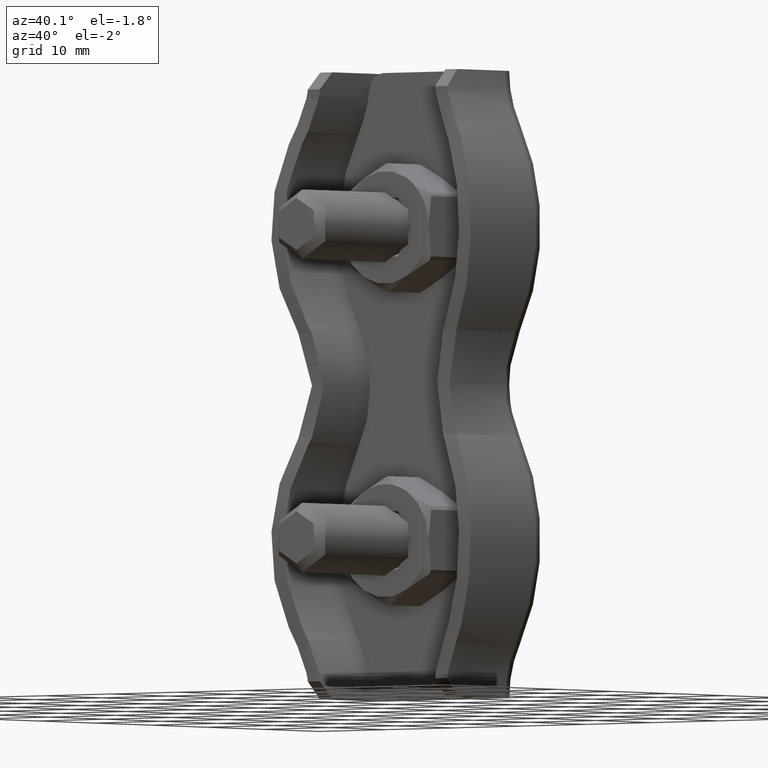
[diagram: clean part render]
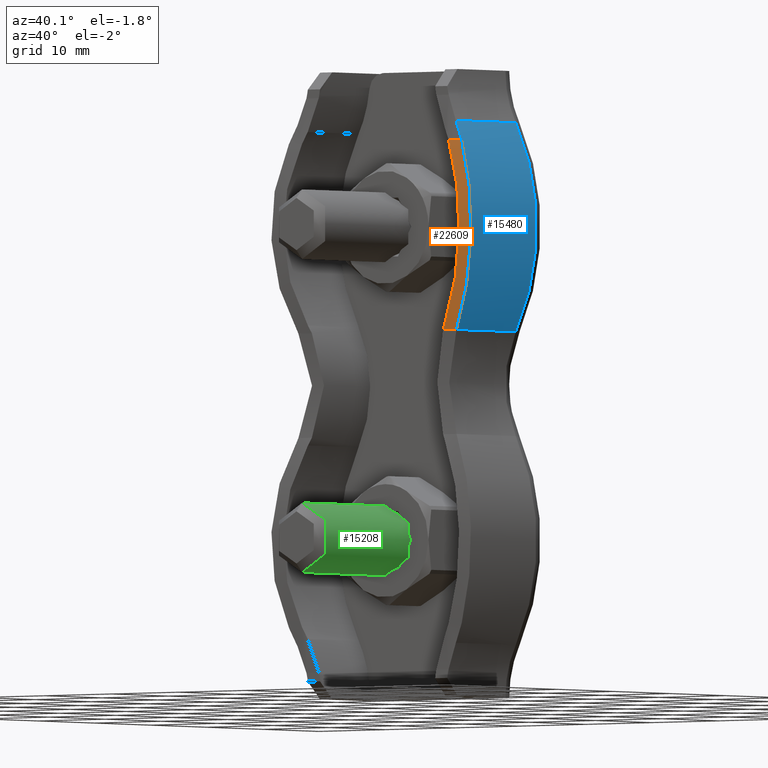
[diagram: same view with three faces highlighted in distinct colors, each labeled with its STEP entity id]
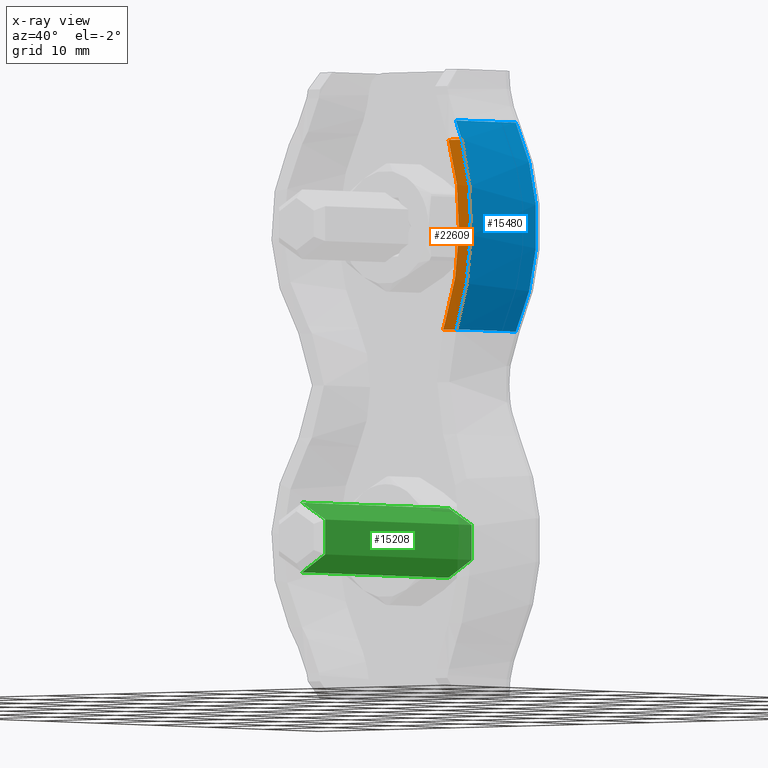
[diagram: x-ray of the same camera — body ghosted, the three highlighted faces saturated]
A machine part, auxiliary view with three faces highlighted in distinct colors.
The next image is the same camera in x-ray (body ghosted, the three faces saturated) — at least one of them is partly hidden behind the body in this view.
Their STEP definitions:

[orange] entity #22609 — the highlighted cylindrical surface (partial cylindrical patch) has radius 64.0961 mm, axis along (1, 0, 0).
#261 = VERTEX_POINT ( 'NONE', #15739 ) ;
#615 = CARTESIAN_POINT ( 'NONE',  ( 14.75862674524628382, -11.80793290479568647, 21.46635888913420942 ) ) ;
#699 = CARTESIAN_POINT ( 'NONE',  ( 12.97151138308429097, -11.15091792706875751, 27.77063573388577922 ) ) ;
#1104 = CARTESIAN_POINT ( 'NONE',  ( 10.29644504801255600, -10.92802886282409602, 6.880002311537446680 ) ) ;
#1508 = CARTESIAN_POINT ( 'NONE',  ( 13.21755110520291687, -11.90622397409276800, 18.13293073687430734 ) ) ;
#1662 = CARTESIAN_POINT ( 'NONE',  ( 13.03913253666785366, -11.84304930635024888, 20.84937541741624045 ) ) ;
#2161 = AXIS2_PLACEMENT_3D ( 'NONE', #12589, #7408, #22363 ) ;
#2576 = CARTESIAN_POINT ( 'NONE',  ( 14.81829356231152595, -11.83047348993794223, 14.87321221585948194 ) ) ;
#3453 = CARTESIAN_POINT ( 'NONE',  ( 10.99450882936744911, -11.15091792706875751, 27.77063573388577922 ) ) ;
#3950 = EDGE_CURVE ( 'NONE', #4223, #15973, #20076, .T. ) ;
#3976 = CARTESIAN_POINT ( 'NONE',  ( -15.00000000000000355, -11.15091792706875751, 27.77063573388577922 ) ) ;
#4223 = VERTEX_POINT ( 'NONE', #1104 ) ;
#4340 = EDGE_CURVE ( 'NONE', #8169, #21256, #19745, .T. ) ;
#4386 = CARTESIAN_POINT ( 'NONE',  ( 15.01597849973845378, -11.90610527123726392, 17.68536078448236637 ) ) ;
#4478 = CARTESIAN_POINT ( 'NONE',  ( 11.86666666666667069, -10.76666666666666039, 6.000000000000000888 ) ) ;
#5365 = CARTESIAN_POINT ( 'NONE',  ( 9.843172437928583207, -10.76666666666666039, 6.000000000000000888 ) ) ;
#7057 = LINE ( 'NONE', #3976, #10300 ) ;
#7077 = CARTESIAN_POINT ( 'NONE',  ( 12.58670652504389942, -11.68487343652118859, 12.73403016413519140 ) ) ;
#7160 = CARTESIAN_POINT ( 'NONE',  ( 11.86779811914552951, -11.43779120259928384, 10.12024042895122378 ) ) ;
#7408 = DIRECTION ( 'NONE',  ( 1.000000000000000000, -0.000000000000000000, -0.000000000000000000 ) ) ;
#8169 = VERTEX_POINT ( 'NONE', #17762 ) ;
#8837 = ORIENTED_EDGE ( 'NONE', *, *, #3950, .F. ) ;
#8959 = CARTESIAN_POINT ( 'NONE',  ( 12.86345090060513385, -11.78131141731671150, 14.07520863848680648 ) ) ;
#9275 = EDGE_CURVE ( 'NONE', #15973, #8169, #7057, .T. ) ;
#9449 = ORIENTED_EDGE ( 'NONE', *, *, #4340, .F. ) ;
#10171 = EDGE_LOOP ( 'NONE', ( #21567, #8837, #19223, #20262, #9449 ) ) ;
#10300 = VECTOR ( 'NONE', #22614, 1000.000000000000000 ) ;
#10628 = FACE_OUTER_BOUND ( 'NONE', #10171, .T. ) ;
#11038 = CARTESIAN_POINT ( 'NONE',  ( 9.983728433329522645, -10.82350061559595567, 6.298201786612485087 ) ) ;
#11486 = DIRECTION ( 'NONE',  ( 1.000000000000000000, -0.000000000000000000, -0.000000000000000000 ) ) ;
#11575 = CARTESIAN_POINT ( 'NONE',  ( 10.13479389449562262, -10.87721696745866495, 6.591562005637353394 ) ) ;
#11857 = CARTESIAN_POINT ( 'NONE',  ( 14.68742413155218607, -11.78090411190984987, 21.93296181643387754 ) ) ;
#12016 = CARTESIAN_POINT ( 'NONE',  ( 13.72313641765627246, -11.41808555626553279, 26.03847957795359136 ) ) ;
#12040 = LINE ( 'NONE', #21014, #23774 ) ;
#12589 = CARTESIAN_POINT ( 'NONE',  ( -15.00000000000000355, 52.19607843137263359, 18.00000000000000355 ) ) ;
#12754 = CARTESIAN_POINT ( 'NONE',  ( 13.15636813666930394, -11.88452322318389065, 16.32687841069756729 ) ) ;
#12833 = CARTESIAN_POINT ( 'NONE',  ( 12.47733567311269098, -11.64702487436612266, 12.29419377746859077 ) ) ;
#12842 = CARTESIAN_POINT ( 'NONE',  ( 11.86666666666667069, -10.76666666666666039, 6.000000000000000888 ) ) ;
#13139 = CARTESIAN_POINT ( 'NONE',  ( 10.29644504801255600, -10.92802886282409602, 6.880002311537446680 ) ) ;
#13364 = B_SPLINE_CURVE_WITH_KNOTS ( 'NONE', 3,
 ( #5365, #11038, #11575, #13139 ),
 .UNSPECIFIED., .F., .F.,
 ( 4, 4 ),
 ( 3.878959614448864246E-18, 0.001002944607499500545 ),
 .UNSPECIFIED. ) ;
#13565 = CARTESIAN_POINT ( 'NONE',  ( 14.50647998758377710, -11.71247126319667053, 13.01267318936339201 ) ) ;
#13642 = CARTESIAN_POINT ( 'NONE',  ( 14.29444095573704665, -11.63267194649115943, 12.08163544774447296 ) ) ;
#13721 = CARTESIAN_POINT ( 'NONE',  ( 14.87434146669154345, -11.85196230438203813, 20.52538887693615877 ) ) ;
#14610 = CARTESIAN_POINT ( 'NONE',  ( 13.19451675917596489, -11.89801320457449130, 19.03741941401587567 ) ) ;
#14696 = CARTESIAN_POINT ( 'NONE',  ( 10.29644504801255600, -10.92802886282409602, 6.880002311537446680 ) ) ;
#14778 = CARTESIAN_POINT ( 'NONE',  ( 12.77974313044033217, -11.75200898548114203, 13.62409259846226384 ) ) ;
#15446 = EDGE_CURVE ( 'NONE', #261, #21256, #12040, .T. ) ;
#15631 = CARTESIAN_POINT ( 'NONE',  ( 15.01031417729558015, -11.90392574521948177, 18.62841251919097019 ) ) ;
#15709 = CARTESIAN_POINT ( 'NONE',  ( 12.78629172293096694, -11.07940817517901522, 7.640921990169942113 ) ) ;
#15739 = CARTESIAN_POINT ( 'NONE',  ( 9.843172437928583207, -10.76666666666666039, 6.000000000000000888 ) ) ;
#15973 = VERTEX_POINT ( 'NONE', #19790 ) ;
#16444 = CARTESIAN_POINT ( 'NONE',  ( 11.18236733022934359, -11.20650129761054004, 8.460787159197424856 ) ) ;
#17374 = CARTESIAN_POINT ( 'NONE',  ( 14.26618771168897482, -11.62182632146585881, 24.24705711799633434 ) ) ;
#17762 = CARTESIAN_POINT ( 'NONE',  ( 12.97151138308429097, -11.15091792706875751, 27.77063573388577922 ) ) ;
#18613 = CARTESIAN_POINT ( 'NONE',  ( 12.90534962537935293, -11.79579635393785075, 21.76024473135077031 ) ) ;
#19223 = ORIENTED_EDGE ( 'NONE', *, *, #21335, .F. ) ;
#19539 = CARTESIAN_POINT ( 'NONE',  ( 14.91997134750469201, -11.86938058293210041, 15.80776037680016088 ) ) ;
#19745 = B_SPLINE_CURVE_WITH_KNOTS ( 'NONE', 3,
 ( #699, #12016, #17374, #11857, #615, #13721, #21068, #15631, #4386, #19539, #2576, #13565, #13642, #22936, #15709, #4478 ),
 .UNSPECIFIED., .F., .F.,
 ( 4, 2, 2, 2, 2, 2, 2, 4 ),
 ( 0.000000000000000000, 0.005642623606856815924, 0.007053279508571025543, 0.008463935410285233427, 0.01128524721371364226, 0.01410655901714205109, 0.01692787082057045991, 0.02257049442742728451 ),
 .UNSPECIFIED. ) ;
#19790 = CARTESIAN_POINT ( 'NONE',  ( 10.99450882936744911, -11.15091792706875751, 27.77063573388577922 ) ) ;
#20054 = CYLINDRICAL_SURFACE ( 'NONE', #2161, 64.09607843137263217 ) ;
#20076 = B_SPLINE_CURVE_WITH_KNOTS ( 'NONE', 3,
 ( #14696, #16444, #7160, #12833, #7077, #14778, #8959, #23987, #12754, #1508, #14610, #1662, #18613, #20338, #22196, #3453 ),
 .UNSPECIFIED., .F., .F.,
 ( 4, 2, 2, 2, 2, 2, 2, 4 ),
 ( 3.878959614448864246E-18, 0.005425339983566360678, 0.006781674979457948463, 0.008138009975349537115, 0.01085067996713271268, 0.01356334995891588825, 0.01627601995069906382, 0.02170135993426541149 ),
 .UNSPECIFIED. ) ;
#20262 = ORIENTED_EDGE ( 'NONE', *, *, #15446, .T. ) ;
#20338 = CARTESIAN_POINT ( 'NONE',  ( 12.34940981459535081, -11.60216654551621573, 24.42339808363817255 ) ) ;
#21014 = CARTESIAN_POINT ( 'NONE',  ( -15.00000000000000355, -10.76666666666666039, 6.000000000000000888 ) ) ;
#21068 = CARTESIAN_POINT ( 'NONE',  ( 14.91888632461214215, -11.86897540490853586, 20.04955826905461080 ) ) ;
#21256 = VERTEX_POINT ( 'NONE', #12842 ) ;
#21335 = EDGE_CURVE ( 'NONE', #261, #4223, #13364, .T. ) ;
#21567 = ORIENTED_EDGE ( 'NONE', *, *, #9275, .F. ) ;
#22196 = CARTESIAN_POINT ( 'NONE',  ( 11.77466170089507536, -11.40387800456440637, 26.13059290101525534 ) ) ;
#22363 = DIRECTION ( 'NONE',  ( 0.000000000000000000, 0.000000000000000000, -1.000000000000000000 ) ) ;
#22609 = ADVANCED_FACE ( 'NONE', ( #10628 ), #20054, .T. ) ;
#22614 = DIRECTION ( 'NONE',  ( 1.000000000000000000, -0.000000000000000000, -0.000000000000000000 ) ) ;
#22936 = CARTESIAN_POINT ( 'NONE',  ( 13.50833403702178437, -11.34184907090182115, 9.365440777557735075 ) ) ;
#23774 = VECTOR ( 'NONE', #11486, 1000.000000000000000 ) ;
#23987 = CARTESIAN_POINT ( 'NONE',  ( 13.07215291994290851, -11.85461072333308152, 15.42531471911803997 ) ) ;

[blue] entity #15480 — the highlighted cylindrical surface (partial cylindrical patch) has radius 24.5454 mm, axis along (-0, -1, -0).
#399 = EDGE_LOOP ( 'NONE', ( #19106, #15116, #1620, #4948, #2368 ) ) ;
#615 = CARTESIAN_POINT ( 'NONE',  ( 14.75862674524628382, -11.80793290479568647, 21.46635888913420942 ) ) ;
#699 = CARTESIAN_POINT ( 'NONE',  ( 12.97151138308429097, -11.15091792706875751, 27.77063573388577922 ) ) ;
#925 = CARTESIAN_POINT ( 'NONE',  ( 12.27404062461117284, -10.94523976736920901, 29.27310714158968707 ) ) ;
#1007 = CARTESIAN_POINT ( 'NONE',  ( 11.86666666666667069, -10.88142794145035452, 30.00000000000000000 ) ) ;
#1620 = ORIENTED_EDGE ( 'NONE', *, *, #4340, .T. ) ;
#1672 = EDGE_CURVE ( 'NONE', #15319, #8169, #11348, .T. ) ;
#1806 = CARTESIAN_POINT ( 'NONE',  ( -9.545390070921987657, -0.2000000000000000944, 18.00000000000000000 ) ) ;
#2368 = ORIENTED_EDGE ( 'NONE', *, *, #11791, .T. ) ;
#2576 = CARTESIAN_POINT ( 'NONE',  ( 14.81829356231152595, -11.83047348993794223, 14.87321221585948194 ) ) ;
#4340 = EDGE_CURVE ( 'NONE', #8169, #21256, #19745, .T. ) ;
#4386 = CARTESIAN_POINT ( 'NONE',  ( 15.01597849973845378, -11.90610527123726392, 17.68536078448236637 ) ) ;
#4478 = CARTESIAN_POINT ( 'NONE',  ( 11.86666666666667069, -10.76666666666666039, 6.000000000000000888 ) ) ;
#4948 = ORIENTED_EDGE ( 'NONE', *, *, #22205, .F. ) ;
#5201 = CYLINDRICAL_SURFACE ( 'NONE', #20091, 24.54539007092198943 ) ;
#5324 = FACE_OUTER_BOUND ( 'NONE', #399, .T. ) ;
#5704 = DIRECTION ( 'NONE',  ( -0.000000000000000000, -1.000000000000000000, -0.000000000000000000 ) ) ;
#6501 = LINE ( 'NONE', #10743, #8253 ) ;
#6554 = CARTESIAN_POINT ( 'NONE',  ( 12.64211924613701932, -11.03383439172008096, 28.52973580571054413 ) ) ;
#8169 = VERTEX_POINT ( 'NONE', #17762 ) ;
#8253 = VECTOR ( 'NONE', #8914, 1000.000000000000000 ) ;
#8914 = DIRECTION ( 'NONE',  ( -0.000000000000000000, -1.000000000000000000, -0.000000000000000000 ) ) ;
#10262 = DIRECTION ( 'NONE',  ( 0.000000000000000000, 0.000000000000000000, -1.000000000000000000 ) ) ;
#10743 = CARTESIAN_POINT ( 'NONE',  ( 11.86666666666667069, 1.800000000000000044, 5.999999999999998224 ) ) ;
#11348 = B_SPLINE_CURVE_WITH_KNOTS ( 'NONE', 3,
 ( #1007, #925, #6554, #14020 ),
 .UNSPECIFIED., .F., .F.,
 ( 4, 4 ),
 ( 0.000000000000000000, 0.002502672917256973557 ),
 .UNSPECIFIED. ) ;
#11791 = EDGE_CURVE ( 'NONE', #15964, #17059, #17285, .T. ) ;
#11857 = CARTESIAN_POINT ( 'NONE',  ( 14.68742413155218607, -11.78090411190984987, 21.93296181643387754 ) ) ;
#12016 = CARTESIAN_POINT ( 'NONE',  ( 13.72313641765627246, -11.41808555626553279, 26.03847957795359136 ) ) ;
#12607 = DIRECTION ( 'NONE',  ( -0.000000000000000000, -1.000000000000000000, -0.000000000000000000 ) ) ;
#12842 = CARTESIAN_POINT ( 'NONE',  ( 11.86666666666667069, -10.76666666666666039, 6.000000000000000888 ) ) ;
#12865 = LINE ( 'NONE', #16213, #21081 ) ;
#13419 = EDGE_CURVE ( 'NONE', #17059, #15319, #12865, .T. ) ;
#13424 = CARTESIAN_POINT ( 'NONE',  ( 11.86666666666667069, -10.88142794145035452, 30.00000000000000000 ) ) ;
#13565 = CARTESIAN_POINT ( 'NONE',  ( 14.50647998758377710, -11.71247126319667053, 13.01267318936339201 ) ) ;
#13642 = CARTESIAN_POINT ( 'NONE',  ( 14.29444095573704665, -11.63267194649115943, 12.08163544774447296 ) ) ;
#13721 = CARTESIAN_POINT ( 'NONE',  ( 14.87434146669154345, -11.85196230438203813, 20.52538887693615877 ) ) ;
#14020 = CARTESIAN_POINT ( 'NONE',  ( 12.97151138308429097, -11.15091792706875751, 27.77063573388577922 ) ) ;
#15116 = ORIENTED_EDGE ( 'NONE', *, *, #1672, .T. ) ;
#15319 = VERTEX_POINT ( 'NONE', #13424 ) ;
#15480 = ADVANCED_FACE ( 'NONE', ( #5324 ), #5201, .T. ) ;
#15576 = CARTESIAN_POINT ( 'NONE',  ( -9.545390070921987657, 1.800000000000000044, 18.00000000000000000 ) ) ;
#15631 = CARTESIAN_POINT ( 'NONE',  ( 15.01031417729558015, -11.90392574521948177, 18.62841251919097019 ) ) ;
#15709 = CARTESIAN_POINT ( 'NONE',  ( 12.78629172293096694, -11.07940817517901522, 7.640921990169942113 ) ) ;
#15964 = VERTEX_POINT ( 'NONE', #19618 ) ;
#16144 = CARTESIAN_POINT ( 'NONE',  ( 11.86666666666666536, -0.2000000000000000944, 30.00000000000000355 ) ) ;
#16213 = CARTESIAN_POINT ( 'NONE',  ( 11.86666666666666536, 1.800000000000000044, 30.00000000000000355 ) ) ;
#17059 = VERTEX_POINT ( 'NONE', #16144 ) ;
#17285 = CIRCLE ( 'NONE', #17838, 24.54539007092199299 ) ;
#17374 = CARTESIAN_POINT ( 'NONE',  ( 14.26618771168897482, -11.62182632146585881, 24.24705711799633434 ) ) ;
#17762 = CARTESIAN_POINT ( 'NONE',  ( 12.97151138308429097, -11.15091792706875751, 27.77063573388577922 ) ) ;
#17838 = AXIS2_PLACEMENT_3D ( 'NONE', #1806, #5704, #22546 ) ;
#19106 = ORIENTED_EDGE ( 'NONE', *, *, #13419, .T. ) ;
#19539 = CARTESIAN_POINT ( 'NONE',  ( 14.91997134750469201, -11.86938058293210041, 15.80776037680016088 ) ) ;
#19618 = CARTESIAN_POINT ( 'NONE',  ( 11.86666666666667069, -0.2000000000000000944, 5.999999999999998224 ) ) ;
#19640 = DIRECTION ( 'NONE',  ( -0.000000000000000000, -1.000000000000000000, -0.000000000000000000 ) ) ;
#19745 = B_SPLINE_CURVE_WITH_KNOTS ( 'NONE', 3,
 ( #699, #12016, #17374, #11857, #615, #13721, #21068, #15631, #4386, #19539, #2576, #13565, #13642, #22936, #15709, #4478 ),
 .UNSPECIFIED., .F., .F.,
 ( 4, 2, 2, 2, 2, 2, 2, 4 ),
 ( 0.000000000000000000, 0.005642623606856815924, 0.007053279508571025543, 0.008463935410285233427, 0.01128524721371364226, 0.01410655901714205109, 0.01692787082057045991, 0.02257049442742728451 ),
 .UNSPECIFIED. ) ;
#20091 = AXIS2_PLACEMENT_3D ( 'NONE', #15576, #19640, #10262 ) ;
#21068 = CARTESIAN_POINT ( 'NONE',  ( 14.91888632461214215, -11.86897540490853586, 20.04955826905461080 ) ) ;
#21081 = VECTOR ( 'NONE', #12607, 1000.000000000000000 ) ;
#21256 = VERTEX_POINT ( 'NONE', #12842 ) ;
#22205 = EDGE_CURVE ( 'NONE', #15964, #21256, #6501, .T. ) ;
#22546 = DIRECTION ( 'NONE',  ( 0.000000000000000000, 0.000000000000000000, 1.000000000000000000 ) ) ;
#22936 = CARTESIAN_POINT ( 'NONE',  ( 13.50833403702178437, -11.34184907090182115, 9.365440777557735075 ) ) ;

[green] entity #15208 — the highlighted cylindrical surface (edge-blend (fillet) strip) has radius 4 mm, axis along (-0, -1, -0).
#137 = AXIS2_PLACEMENT_3D ( 'NONE', #3242, #5313, #20215 ) ;
#171 = DIRECTION ( 'NONE',  ( -0.000000000000000000, -1.000000000000000000, -0.000000000000000000 ) ) ;
#564 = LINE ( 'NONE', #21259, #17624 ) ;
#1159 = CARTESIAN_POINT ( 'NONE',  ( 4.898587196589412237E-15, 1.800000000000000044, -14.00000000000000355 ) ) ;
#2169 = CARTESIAN_POINT ( 'NONE',  ( 4.408728476930470856E-15, -24.19999999999999929, -18.00000000000000355 ) ) ;
#2656 = EDGE_CURVE ( 'NONE', #17109, #22381, #564, .T. ) ;
#3242 = CARTESIAN_POINT ( 'NONE',  ( 4.408728476930470856E-15, 1.899999999999999467, -18.00000000000000355 ) ) ;
#3339 = ORIENTED_EDGE ( 'NONE', *, *, #22138, .T. ) ;
#3611 = ORIENTED_EDGE ( 'NONE', *, *, #2656, .F. ) ;
#4648 = FACE_OUTER_BOUND ( 'NONE', #15324, .T. ) ;
#4905 = CIRCLE ( 'NONE', #15606, 3.999999999999998224 ) ;
#4914 = DIRECTION ( 'NONE',  ( -0.000000000000000000, -1.000000000000000000, -0.000000000000000000 ) ) ;
#5054 = VECTOR ( 'NONE', #20160, 1000.000000000000000 ) ;
#5313 = DIRECTION ( 'NONE',  ( -0.000000000000000000, -1.000000000000000000, -0.000000000000000000 ) ) ;
#5844 = VERTEX_POINT ( 'NONE', #21036 ) ;
#5862 = ORIENTED_EDGE ( 'NONE', *, *, #13579, .T. ) ;
#6216 = LINE ( 'NONE', #1159, #5054 ) ;
#7383 = CARTESIAN_POINT ( 'NONE',  ( 4.408728476930470856E-15, 1.800000000000000044, -18.00000000000000355 ) ) ;
#12004 = AXIS2_PLACEMENT_3D ( 'NONE', #7383, #171, #20713 ) ;
#12011 = CARTESIAN_POINT ( 'NONE',  ( 4.898587196589413026E-15, -24.19999999999999929, -22.00000000000000000 ) ) ;
#12920 = ORIENTED_EDGE ( 'NONE', *, *, #21590, .T. ) ;
#13245 = DIRECTION ( 'NONE',  ( 0.000000000000000000, 0.000000000000000000, 1.000000000000000000 ) ) ;
#13366 = CARTESIAN_POINT ( 'NONE',  ( 4.898587196589412237E-15, 1.899999999999999467, -14.00000000000000178 ) ) ;
#13579 = EDGE_CURVE ( 'NONE', #5844, #22381, #4905, .T. ) ;
#14318 = VERTEX_POINT ( 'NONE', #13366 ) ;
#15208 = ADVANCED_FACE ( 'NONE', ( #4648 ), #16651, .T. ) ;
#15324 = EDGE_LOOP ( 'NONE', ( #3339, #12920, #5862, #3611 ) ) ;
#15606 = AXIS2_PLACEMENT_3D ( 'NONE', #2169, #22696, #13245 ) ;
#15894 = CIRCLE ( 'NONE', #137, 4.000000000000000000 ) ;
#16651 = CYLINDRICAL_SURFACE ( 'NONE', #12004, 3.999999999999996447 ) ;
#17109 = VERTEX_POINT ( 'NONE', #17824 ) ;
#17624 = VECTOR ( 'NONE', #4914, 1000.000000000000000 ) ;
#17824 = CARTESIAN_POINT ( 'NONE',  ( 4.408728476930470856E-15, 1.899999999999999467, -22.00000000000000355 ) ) ;
#20160 = DIRECTION ( 'NONE',  ( -0.000000000000000000, -1.000000000000000000, -0.000000000000000000 ) ) ;
#20215 = DIRECTION ( 'NONE',  ( 0.000000000000000000, 0.000000000000000000, -1.000000000000000000 ) ) ;
#20713 = DIRECTION ( 'NONE',  ( 0.000000000000000000, 0.000000000000000000, -1.000000000000000000 ) ) ;
#21036 = CARTESIAN_POINT ( 'NONE',  ( 4.408728476930470856E-15, -24.19999999999999929, -14.00000000000000355 ) ) ;
#21259 = CARTESIAN_POINT ( 'NONE',  ( 4.408728476930470856E-15, 1.800000000000000044, -22.00000000000000000 ) ) ;
#21590 = EDGE_CURVE ( 'NONE', #14318, #5844, #6216, .T. ) ;
#22138 = EDGE_CURVE ( 'NONE', #17109, #14318, #15894, .T. ) ;
#22381 = VERTEX_POINT ( 'NONE', #12011 ) ;
#22696 = DIRECTION ( 'NONE',  ( 0.000000000000000000, 1.000000000000000000, 0.000000000000000000 ) ) ;